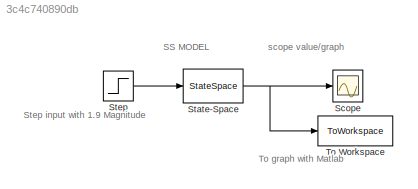
MODEL slx_3c4c740890db
KIND model
CONFIG AbsTol = auto
CONFIG EnableMultiTasking = off
CONFIG FixedStep = auto
CONFIG MaxStep = auto
CONFIG MinStep = auto
CONFIG RelTol = 1e-3
CONFIG SampleTimeConstraint = Unconstrained
CONFIG Solver = VariableStepAuto
CONFIG SolverName = VariableStepAuto
CONFIG StartTime = 0.0
CONFIG StopTime = 6
BLOCK [Scope] Scope
  Floating = off
  NumInputPorts = 1
  Ports = [1]
  ScopeSpecificationString = Simulink.scopes.TimeScopeBlockCfg('CurrentConfiguration', extmgr.ConfigurationSet(extmgr.Configuration('Core','General UI',true),extmgr.Configuration('Core','Source UI',true),extmgr.Configuration('Sources','WiredSimulink',true,'SampleTime','0'),extmgr.Configuration('Visuals','Time Domain',true,'SerializedDisplays',{struct('MinYLimReal','-1.90464','MaxYLimReal','33.93617','YLabelReal','','MinYLimMa...<+1382ch>
BLOCK [StateSpace] State-Space
  A = [-2.7 -2.2 ; -0.8 -3.5]
  B = [-4;3.1]
  C = [-3.9 3.6]
  D = 0
  InitialCondition = [0.4;0.9]
  Ports = [1, 1]
BLOCK [Step] Step
  After = 1.9
  SampleTime = 0
  Time = 0.001
BLOCK [ToWorkspace] To Workspace
  FixptAsFi = on
  MaxDataPoints = inf
  Ports = [1]
  SampleTime = -1
  Save2DSignal = 2-D array (concatenate along first dimension)
  VariableName = OutputvectorSSR
ANNOTATION (root): SS MODEL
ANNOTATION (root): Step input with 1.9 Magnitude
ANNOTATION (root): To graph with Matlab
ANNOTATION (root): scope value/graph
NET State-Space:1 -> Scope:1, To Workspace:1
LINE Step:1 -> State-Space:1
note: NET lines group one-source signal fan-out (src -> all destinations, sorted); 1:1 wires keep LINE
